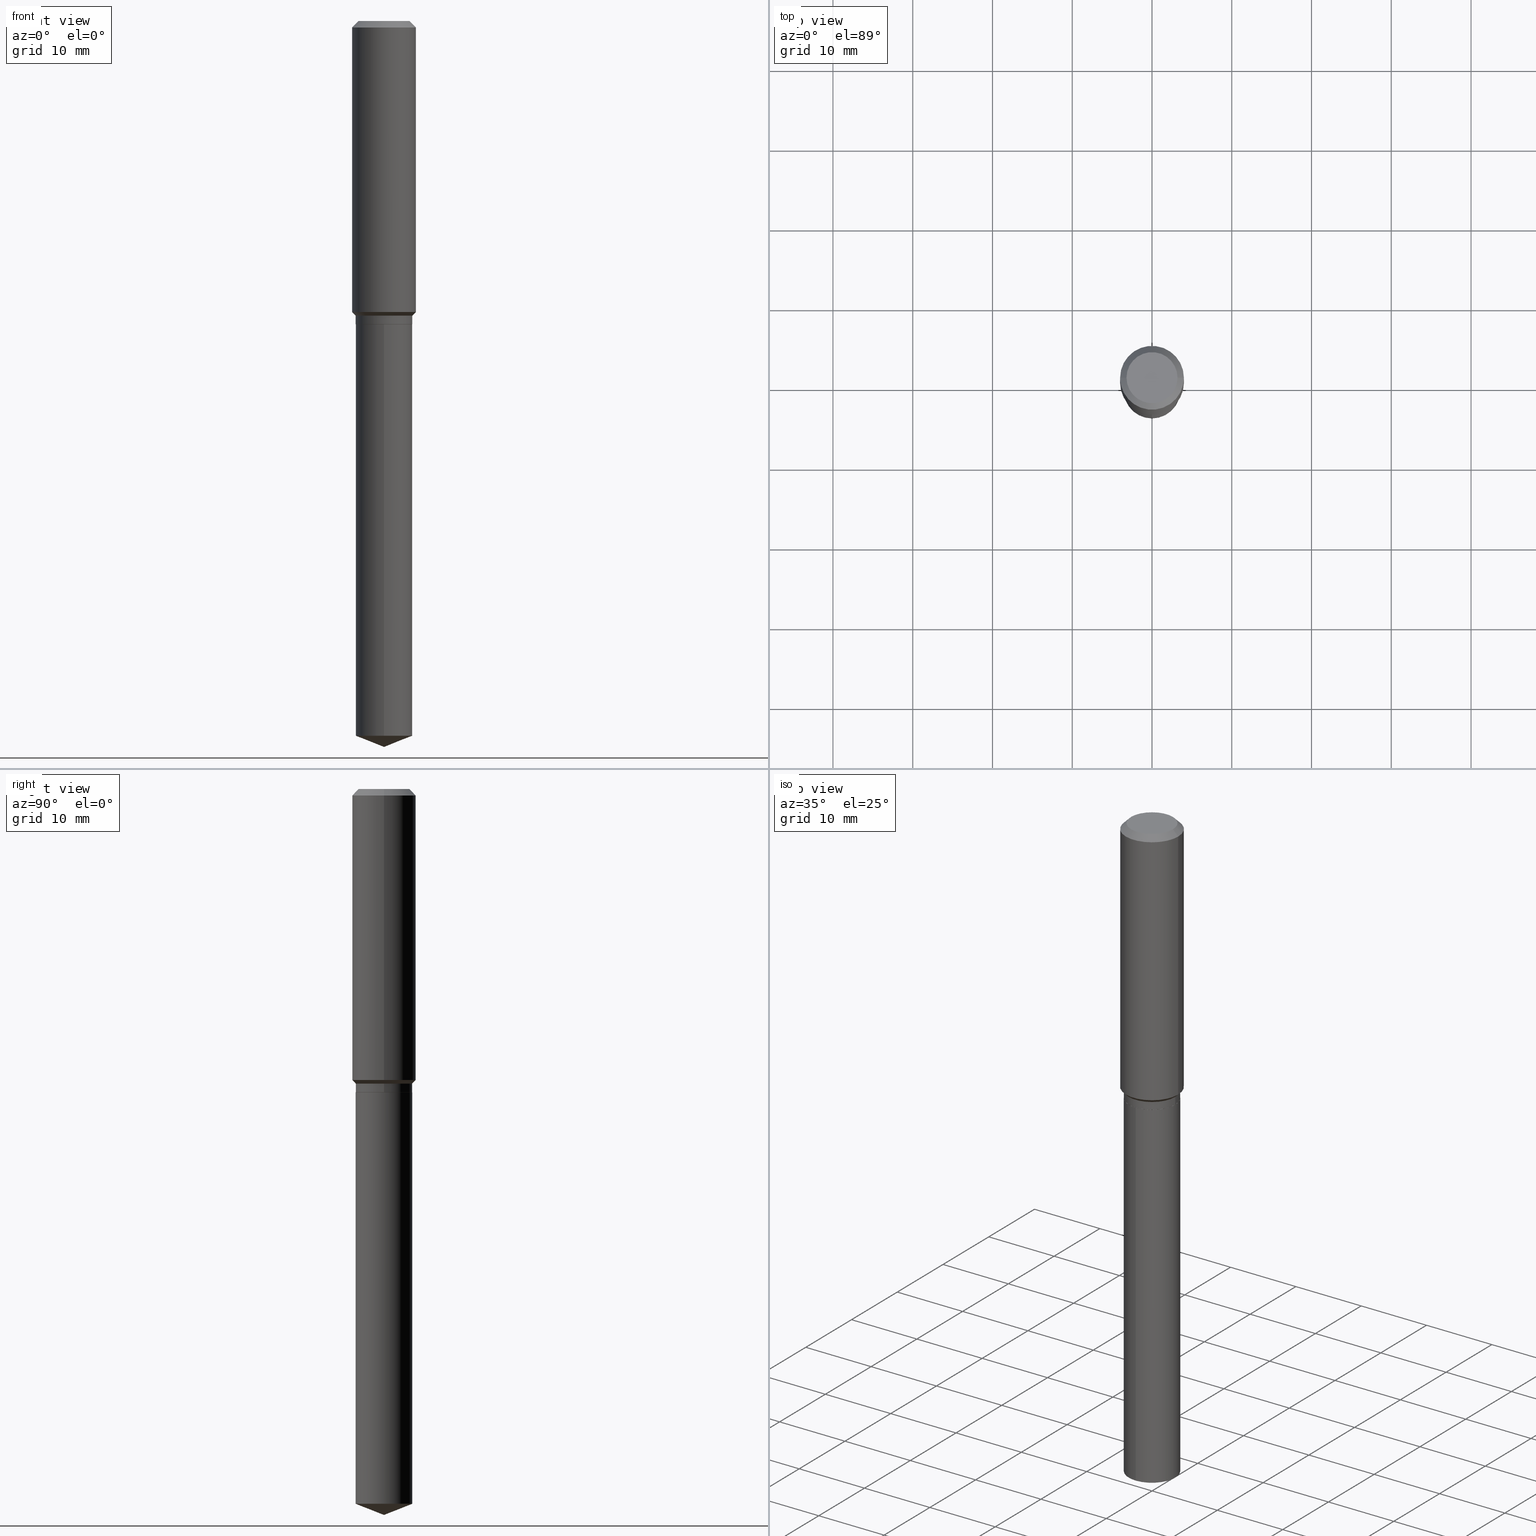
[diagram: canonical four-view strip — front | top / right | iso, engineering-drawing reading convention]
A machine part, canonical four-view strip (front | top / right | iso — engineering-drawing reading convention). The complete STEP part file that produces these views, byte-faithful:
ISO-10303-21;
HEADER;
FILE_DESCRIPTION (( 'STEP AP203' ),
    '1' );
FILE_NAME ('66544.STEP',
    '2024-04-25T00:38:59',
    ( '' ),
    ( '' ),
    'SwSTEP 2.0',
    'SolidWorks 2023',
    '' );
FILE_SCHEMA (( 'CONFIG_CONTROL_DESIGN' ));
ENDSEC;

DATA;
#1 = CARTESIAN_POINT ( 'NONE',  ( -0.1397500000000000131, -4.156951501568900332E-15, -1.454100000000000170 ) ) ;
#2 = PRODUCT_DEFINITION_FORMATION_WITH_SPECIFIED_SOURCE ( 'ANY', '', #199, .NOT_KNOWN. ) ;
#3 = PLANE ( 'NONE',  #386 ) ;
#4 = ORIENTED_EDGE ( 'NONE', *, *, #150, .T. ) ;
#5 = ADVANCED_FACE ( 'NONE', ( #291 ), #77, .T. ) ;
#6 = ORIENTED_EDGE ( 'NONE', *, *, #219, .T. ) ;
#7 = ORIENTED_EDGE ( 'NONE', *, *, #377, .T. ) ;
#8 = CIRCLE ( 'NONE', #126, 0.1397500000000000131 ) ;
#9 = AXIS2_PLACEMENT_3D ( 'NONE', #470, #57, #264 ) ;
#10 = CARTESIAN_POINT ( 'NONE',  ( 3.658176787172346501E-29, -5.222906934775461847E-15, -1.495900000000000230 ) ) ;
#11 = CONICAL_SURFACE ( 'NONE', #83, 0.1575000000000000011, 0.7853981633974449483 ) ;
#12 = VERTEX_POINT ( 'NONE', #147 ) ;
#13 = DIRECTION ( 'NONE',  ( 2.445468806185136597E-29, -3.491481338843145583E-15, -1.000000000000000000 ) ) ;
#14 = ADVANCED_BREP_SHAPE_REPRESENTATION ( '66544', ( #240, #408, #337 ), #269 ) ;
#15 = EDGE_CURVE ( 'NONE', #172, #472, #110, .T. ) ;
#16 = ORIENTED_EDGE ( 'NONE', *, *, #116, .F. ) ;
#17 = CARTESIAN_POINT ( 'NONE',  ( 0.000000000000000000, 0.000000000000000000, 0.000000000000000000 ) ) ;
#18 = VERTEX_POINT ( 'NONE', #379 ) ;
#19 = LOCAL_TIME ( 20, 38, 59.00000000000000000, #156 ) ;
#20 = FACE_OUTER_BOUND ( 'NONE', #98, .T. ) ;
#21 = CONICAL_SURFACE ( 'NONE', #39, 0.1392500000000000127, 0.7853981633972606513 ) ;
#22 = APPROVAL_STATUS ( 'not_yet_approved' ) ;
#23 = ORIENTED_EDGE ( 'NONE', *, *, #237, .T. ) ;
#24 = EDGE_CURVE ( 'NONE', #92, #321, #149, .T. ) ;
#25 = DIRECTION ( 'NONE',  ( -2.445468806185136877E-29, 3.491481338843145188E-15, 1.000000000000000000 ) ) ;
#26 = APPROVAL_STATUS ( 'not_yet_approved' ) ;
#27 = CARTESIAN_POINT ( 'NONE',  ( 3.659399521575438742E-29, -5.224652675444883351E-15, -1.496400000000000174 ) ) ;
#28 = CARTESIAN_POINT ( 'NONE',  ( 8.762090515050494278E-29, -1.251001393177779982E-14, -3.583000000000000185 ) ) ;
#29 = DIRECTION ( 'NONE',  ( -2.445425864037539637E-29, 3.491542834442619495E-15, 1.000000000000000000 ) ) ;
#30 = CC_DESIGN_SECURITY_CLASSIFICATION ( #392, ( #2 ) ) ;
#31 = FACE_OUTER_BOUND ( 'NONE', #287, .T. ) ;
#32 = AXIS2_PLACEMENT_3D ( 'NONE', #341, #409, #480 ) ;
#33 = DIRECTION ( 'NONE',  ( -2.445468806185136877E-29, 3.491481338843145188E-15, 1.000000000000000000 ) ) ;
#34 = CONICAL_SURFACE ( 'NONE', #82, 0.1575000000000000011, 0.7853981633974449483 ) ;
#35 = LENGTH_MEASURE_WITH_UNIT ( LENGTH_MEASURE( 0.02539999999999999897 ), #104 );
#36 = FACE_OUTER_BOUND ( 'NONE', #168, .T. ) ;
#37 = DIRECTION ( 'NONE',  ( 2.438088387897960049E-29, -3.491481338843145188E-15, -1.000000000000000000 ) ) ;
#38 = DATE_TIME_ROLE ( 'classification_date' ) ;
#39 = AXIS2_PLACEMENT_3D ( 'NONE', #238, #195, #390 ) ;
#40 = AXIS2_PLACEMENT_3D ( 'NONE', #17, #292, #324 ) ;
#41 = CALENDAR_DATE ( 2024, 24, 4 ) ;
#42 = VERTEX_POINT ( 'NONE', #165 ) ;
#43 = DIRECTION ( 'NONE',  ( 1.000000000000000000, -6.982962677686267499E-15, 0.000000000000000000 ) ) ;
#44 = ORIENTED_EDGE ( 'NONE', *, *, #75, .F. ) ;
#45 = DIRECTION ( 'NONE',  ( 0.7071067811865484609, -2.468850131082267316E-15, 0.7071067811865464625 ) ) ;
#46 = ADVANCED_FACE ( 'NONE', ( #81 ), #21, .T. ) ;
#47 = ORIENTED_EDGE ( 'NONE', *, *, #75, .T. ) ;
#48 = ORIENTED_EDGE ( 'NONE', *, *, #377, .F. ) ;
#49 = PRODUCT_DEFINITION ( 'UNKNOWN', '', #2, #152 ) ;
#50 = CARTESIAN_POINT ( 'NONE',  ( 0.1392500000000000127, -6.197030228312697126E-15, -1.496400000000000396 ) ) ;
#51 = ORIENTED_EDGE ( 'NONE', *, *, #55, .T. ) ;
#52 = AXIS2_PLACEMENT_3D ( 'NONE', #302, #223, #80 ) ;
#53 = LOCAL_TIME ( 20, 38, 59.00000000000000000, #265 ) ;
#54 = AXIS2_PLACEMENT_3D ( 'NONE', #372, #254, #488 ) ;
#55 = EDGE_CURVE ( 'NONE', #439, #472, #207, .T. ) ;
#56 = DIRECTION ( 'NONE',  ( -0.7071067811865484609, 7.493145998870357316E-15, 0.7071067811865464625 ) ) ;
#57 = DIRECTION ( 'NONE',  ( -2.445468806185136597E-29, 3.491481338843145583E-15, 1.000000000000000000 ) ) ;
#58 = DIRECTION ( 'NONE',  ( 1.000000000000000000, -6.982962677686265922E-15, 0.000000000000000000 ) ) ;
#59 = CC_DESIGN_PERSON_AND_ORGANIZATION_ASSIGNMENT ( #336, #435, ( #199 ) ) ;
#60 = CALENDAR_DATE ( 2024, 24, 4 ) ;
#61 = ORIENTED_EDGE ( 'NONE', *, *, #138, .T. ) ;
#62 = PLANE ( 'NONE',  #215 ) ;
#63 = EDGE_CURVE ( 'NONE', #12, #239, #90, .T. ) ;
#64 = ORIENTED_EDGE ( 'NONE', *, *, #342, .F. ) ;
#65 = DIRECTION ( 'NONE',  ( 1.000000000000000000, -6.982962677686265922E-15, 4.876281427513067258E-29 ) ) ;
#66 = VECTOR ( 'NONE', #225, 39.37007874015748143 ) ;
#67 = VECTOR ( 'NONE', #476, 39.37007874015748143 ) ;
#68 = EDGE_LOOP ( 'NONE', ( #6, #404, #325, #234 ) ) ;
#69 = PRODUCT_RELATED_PRODUCT_CATEGORY ( 'detail', '', ( #199 ) ) ;
#70 = CARTESIAN_POINT ( 'NONE',  ( 8.627406908066692635E-29, -1.231790005082116085E-14, -3.527951011032812723 ) ) ;
#71 = CARTESIAN_POINT ( 'NONE',  ( -9.439721640706201686E-47, 1.347742071746726764E-32, 3.860086710912459732E-18 ) ) ;
#72 = CARTESIAN_POINT ( 'NONE',  ( 0.1397500000000000131, -6.198775968982117841E-15, -1.495900000000000230 ) ) ;
#73 = CARTESIAN_POINT ( 'NONE',  ( 0.1397500000000000131, -9.758690342066557965E-16, 6.814457044174820579E-30 ) ) ;
#74 = CC_DESIGN_APPROVAL ( #475, ( #2 ) ) ;
#75 = EDGE_CURVE ( 'NONE', #472, #442, #315, .T. ) ;
#76 = CARTESIAN_POINT ( 'NONE',  ( 9.929834732247765877E-16, 0.1397499999999947951, -1.496400000000000841 ) ) ;
#77 = CONICAL_SURFACE ( 'NONE', #9, 0.1397500000000000131, 0.7853981633974497223 ) ;
#78 =( NAMED_UNIT ( * ) PLANE_ANGLE_UNIT ( ) SI_UNIT ( $, .RADIAN. ) );
#79 = PERSON_AND_ORGANIZATION ( #284, #304 ) ;
#80 = DIRECTION ( 'NONE',  ( 1.000000000000000000, -6.982962677686267499E-15, 0.000000000000000000 ) ) ;
#81 = FACE_OUTER_BOUND ( 'NONE', #127, .T. ) ;
#82 = AXIS2_PLACEMENT_3D ( 'NONE', #359, #13, #471 ) ;
#83 = AXIS2_PLACEMENT_3D ( 'NONE', #490, #145, #451 ) ;
#84 = CC_DESIGN_PERSON_AND_ORGANIZATION_ASSIGNMENT ( #267, #305, ( #2 ) ) ;
#85 = PERSON_AND_ORGANIZATION ( #284, #304 ) ;
#86 = CARTESIAN_POINT ( 'NONE',  ( 8.761960870846505279E-29, -1.251019797580790401E-14, -3.583000000000000185 ) ) ;
#87 = ORIENTED_EDGE ( 'NONE', *, *, #417, .T. ) ;
#88 = ORIENTED_EDGE ( 'NONE', *, *, #479, .T. ) ;
#89 = VERTEX_POINT ( 'NONE', #272 ) ;
#90 = CIRCLE ( 'NONE', #328, 0.1397500000000000131 ) ;
#91 = APPROVAL_PERSON_ORGANIZATION ( #146, #464, #481 ) ;
#92 = VERTEX_POINT ( 'NONE', #86 ) ;
#93 = EDGE_CURVE ( 'NONE', #89, #163, #462, .T. ) ;
#94 = DIRECTION ( 'NONE',  ( 1.000000000000000000, -6.982962677686267499E-15, 0.000000000000000000 ) ) ;
#95 = ORIENTED_EDGE ( 'NONE', *, *, #273, .F. ) ;
#96 = CARTESIAN_POINT ( 'NONE',  ( -9.758690342065698106E-16, -0.1397500000000123643, -3.527951011032812279 ) ) ;
#97 = CC_DESIGN_APPROVAL ( #464, ( #49 ) ) ;
#98 = EDGE_LOOP ( 'NONE', ( #4, #211 ) ) ;
#99 = PLANE ( 'NONE',  #193 ) ;
#100 = ORIENTED_EDGE ( 'NONE', *, *, #24, .T. ) ;
#101 = CARTESIAN_POINT ( 'NONE',  ( -9.758690342066191144E-16, -0.1397500000000052311, -1.496399999999999730 ) ) ;
#102 = CARTESIAN_POINT ( 'NONE',  ( 3.555956191073807244E-29, -5.076963014811818627E-15, -1.454100000000000170 ) ) ;
#103 = VERTEX_POINT ( 'NONE', #198 ) ;
#104 =( LENGTH_UNIT ( ) NAMED_UNIT ( * ) SI_UNIT ( $, .METRE. ) );
#105 = CIRCLE ( 'NONE', #467, 0.1397500000000000131 ) ;
#106 = CARTESIAN_POINT ( 'NONE',  ( 3.659399521575439863E-29, -5.224652675444884140E-15, -1.496400000000000396 ) ) ;
#107 = CARTESIAN_POINT ( 'NONE',  ( 0.000000000000000000, 0.000000000000000000, 0.000000000000000000 ) ) ;
#108 = CARTESIAN_POINT ( 'NONE',  ( -9.758690342066191144E-16, -0.1397500000000052311, -1.496399999999999730 ) ) ;
#109 = PERSON_AND_ORGANIZATION ( #284, #304 ) ;
#110 = LINE ( 'NONE', #73, #351 ) ;
#111 = DIRECTION ( 'NONE',  ( -6.982962677686265133E-15, -1.000000000000000000, 3.909621457837943227E-15 ) ) ;
#112 = LINE ( 'NONE', #300, #117 ) ;
#113 = APPROVAL_DATE_TIME ( #310, #187 ) ;
#114 = CC_DESIGN_PERSON_AND_ORGANIZATION_ASSIGNMENT ( #346, #420, ( #2 ) ) ;
#115 = LINE ( 'NONE', #306, #452 ) ;
#116 = EDGE_CURVE ( 'NONE', #18, #12, #397, .T. ) ;
#117 = VECTOR ( 'NONE', #298, 39.37007874015748143 ) ;
#118 = CARTESIAN_POINT ( 'NONE',  ( 0.1397500000000000131, -6.052832049018473832E-15, -1.454100000000000170 ) ) ;
#119 = AXIS2_PLACEMENT_3D ( 'NONE', #128, #281, #94 ) ;
#120 = MECHANICAL_CONTEXT ( 'NONE', #123, 'mechanical' ) ;
#121 = ORIENTED_EDGE ( 'NONE', *, *, #440, .T. ) ;
#122 = EDGE_CURVE ( 'NONE', #179, #42, #427, .T. ) ;
#123 = APPLICATION_CONTEXT ( 'configuration controlled 3d designs of mechanical parts and assemblies' ) ;
#124 = EDGE_CURVE ( 'NONE', #92, #18, #139, .T. ) ;
#125 = AXIS2_PLACEMENT_3D ( 'NONE', #106, #414, #221 ) ;
#126 = AXIS2_PLACEMENT_3D ( 'NONE', #220, #381, #182 ) ;
#127 = EDGE_LOOP ( 'NONE', ( #64, #174, #468, #477 ) ) ;
#128 = CARTESIAN_POINT ( 'NONE',  ( 3.512549119764021199E-29, -5.014989221047352489E-15, -1.436350000000000016 ) ) ;
#129 = ORIENTED_EDGE ( 'NONE', *, *, #93, .F. ) ;
#130 = DIRECTION ( 'NONE',  ( 0.7071067811864147901, -2.468850131080866299E-15, 0.7071067811866802444 ) ) ;
#131 = ORIENTED_EDGE ( 'NONE', *, *, #219, .F. ) ;
#132 = AXIS2_PLACEMENT_3D ( 'NONE', #394, #425, #196 ) ;
#133 = CARTESIAN_POINT ( 'NONE',  ( 3.659399521575438742E-29, -5.224652675444883351E-15, -1.496400000000000174 ) ) ;
#134 = ORIENTED_EDGE ( 'NONE', *, *, #440, .F. ) ;
#135 = DIRECTION ( 'NONE',  ( -2.445468806185136597E-29, 3.491481338843145583E-15, 1.000000000000000000 ) ) ;
#136 = ORIENTED_EDGE ( 'NONE', *, *, #307, .T. ) ;
#137 = DIRECTION ( 'NONE',  ( -2.445425864037539637E-29, 3.491542834442619495E-15, 1.000000000000000000 ) ) ;
#138 = EDGE_CURVE ( 'NONE', #245, #466, #270, .T. ) ;
#139 = LINE ( 'NONE', #28, #344 ) ;
#140 = PERSON_AND_ORGANIZATION ( #284, #304 ) ;
#141 = AXIS2_PLACEMENT_3D ( 'NONE', #340, #444, #419 ) ;
#142 = CARTESIAN_POINT ( 'NONE',  ( 0.1575000000000001676, -6.114805842782939970E-15, -1.436350000000000016 ) ) ;
#143 = CLOSED_SHELL ( 'NONE', ( #415, #232, #200, #5, #289, #246, #227, #465, #410, #429, #329, #46 ) ) ;
#144 = CIRCLE ( 'NONE', #483, 0.1397500000000000131 ) ;
#145 = DIRECTION ( 'NONE',  ( 2.445468806185136597E-29, -3.491481338843145583E-15, -1.000000000000000000 ) ) ;
#146 = PERSON_AND_ORGANIZATION ( #284, #304 ) ;
#147 = CARTESIAN_POINT ( 'NONE',  ( 9.929834732248264831E-16, 0.1397499999999947951, -1.496400000000000841 ) ) ;
#148 = DIRECTION ( 'NONE',  ( -2.445468806185136597E-29, 3.491481338843145583E-15, 1.000000000000000000 ) ) ;
#149 = LINE ( 'NONE', #190, #66 ) ;
#150 = EDGE_CURVE ( 'NONE', #239, #12, #393, .T. ) ;
#151 = FACE_OUTER_BOUND ( 'NONE', #68, .T. ) ;
#152 = DESIGN_CONTEXT ( 'detailed design', #201, 'design' ) ;
#153 =( CONVERSION_BASED_UNIT ( 'INCH', #35 ) LENGTH_UNIT ( ) NAMED_UNIT ( #235 ) );
#154 = VECTOR ( 'NONE', #181, 39.37007874015748143 ) ;
#155 = AXIS2_PLACEMENT_3D ( 'NONE', #286, #210, #180 ) ;
#156 = COORDINATED_UNIVERSAL_TIME_OFFSET ( 5, 0, .BEHIND. ) ;
#157 = DIRECTION ( 'NONE',  ( 1.000000000000000000, -6.982962677686267499E-15, 4.876176775795936353E-29 ) ) ;
#158 = SHAPE_DEFINITION_REPRESENTATION ( #347, #14 ) ;
#159 = ORIENTED_EDGE ( 'NONE', *, *, #454, .T. ) ;
#160 = CARTESIAN_POINT ( 'NONE',  ( 0.000000000000000000, 0.000000000000000000, 0.000000000000000000 ) ) ;
#161 = APPROVAL_ROLE ( '' ) ;
#162 = CARTESIAN_POINT ( 'NONE',  ( 3.659399521575438742E-29, -5.224652675444883351E-15, -1.496400000000000174 ) ) ;
#163 = VERTEX_POINT ( 'NONE', #333 ) ;
#164 = ORIENTED_EDGE ( 'NONE', *, *, #479, .F. ) ;
#165 = CARTESIAN_POINT ( 'NONE',  ( 0.1260000000000000009, -1.027466422270894443E-15, 3.860086710919128072E-18 ) ) ;
#166 = ORIENTED_EDGE ( 'NONE', *, *, #122, .T. ) ;
#167 = EDGE_CURVE ( 'NONE', #442, #202, #236, .T. ) ;
#168 = EDGE_LOOP ( 'NONE', ( #364, #316, #203, #164 ) ) ;
#169 = LINE ( 'NONE', #101, #271 ) ;
#170 = ORIENTED_EDGE ( 'NONE', *, *, #395, .T. ) ;
#171 = LINE ( 'NONE', #283, #205 ) ;
#172 = VERTEX_POINT ( 'NONE', #72 ) ;
#173 = FACE_OUTER_BOUND ( 'NONE', #389, .T. ) ;
#174 = ORIENTED_EDGE ( 'NONE', *, *, #93, .T. ) ;
#175 = AXIS2_PLACEMENT_3D ( 'NONE', #258, #224, #260 ) ;
#176 = AXIS2_PLACEMENT_3D ( 'NONE', #233, #388, #43 ) ;
#177 = DIRECTION ( 'NONE',  ( 1.000000000000000000, -6.982962677686265922E-15, 4.876176775795935793E-29 ) ) ;
#178 = DATE_TIME_ROLE ( 'creation_date' ) ;
#179 = VERTEX_POINT ( 'NONE', #294 ) ;
#180 = DIRECTION ( 'NONE',  ( -6.982962677686265133E-15, -1.000000000000000000, 3.498627837349974246E-15 ) ) ;
#181 = DIRECTION ( 'NONE',  ( -2.445425864037539356E-29, 3.491542834442619101E-15, 1.000000000000000000 ) ) ;
#182 = DIRECTION ( 'NONE',  ( 1.000000000000000000, -6.982962677686265133E-15, 0.000000000000000000 ) ) ;
#183 = DIRECTION ( 'NONE',  ( 1.000000000000000000, -6.982962677686265133E-15, 0.000000000000000000 ) ) ;
#184 = AXIS2_PLACEMENT_3D ( 'NONE', #339, #148, #177 ) ;
#185 = DIRECTION ( 'NONE',  ( -1.000000000000000000, 6.982962677686265922E-15, -4.876176775795935793E-29 ) ) ;
#186 = AXIS2_PLACEMENT_3D ( 'NONE', #445, #448, #303 ) ;
#187 = APPROVAL ( #422, 'UNSPECIFIED' ) ;
#188 = CYLINDRICAL_SURFACE ( 'NONE', #184, 0.1397500000000000131 ) ;
#189 = CARTESIAN_POINT ( 'NONE',  ( -4.719860820353100843E-47, 6.738710358733633822E-33, 1.930043355456229866E-18 ) ) ;
#190 = CARTESIAN_POINT ( 'NONE',  ( 8.761960870846503037E-29, -1.251019797580790401E-14, -3.583000000000000185 ) ) ;
#191 = DATE_AND_TIME ( #449, #350 ) ;
#192 = CARTESIAN_POINT ( 'NONE',  ( -0.1575000000000000011, -1.443380632788297581E-15, -0.03150000000000019451 ) ) ;
#193 = AXIS2_PLACEMENT_3D ( 'NONE', #250, #405, #330 ) ;
#194 = APPROVAL_DATE_TIME ( #263, #475 ) ;
#195 = DIRECTION ( 'NONE',  ( -2.445468806185136597E-29, 3.491481338843145583E-15, 1.000000000000000000 ) ) ;
#196 = DIRECTION ( 'NONE',  ( 1.000000000000000000, -6.982962677686265133E-15, 0.000000000000000000 ) ) ;
#197 = EDGE_LOOP ( 'NONE', ( #256, #323, #61, #309 ) ) ;
#198 = CARTESIAN_POINT ( 'NONE',  ( -0.1397500000000000131, -4.156951501568900332E-15, -1.495900000000000230 ) ) ;
#199 = PRODUCT ( '66544', '66544', '', ( #120 ) ) ;
#200 = ADVANCED_FACE ( 'NONE', ( #36 ), #382, .T. ) ;
#201 = APPLICATION_CONTEXT ( 'configuration controlled 3d designs of mechanical parts and assemblies' ) ;
#202 = VERTEX_POINT ( 'NONE', #290 ) ;
#203 = ORIENTED_EDGE ( 'NONE', *, *, #138, .F. ) ;
#204 = CARTESIAN_POINT ( 'NONE',  ( -0.1392500000000000127, -4.235221915898944738E-15, -1.496400000000000396 ) ) ;
#205 = VECTOR ( 'NONE', #25, 39.37007874015748143 ) ;
#206 = ORIENTED_EDGE ( 'NONE', *, *, #460, .F. ) ;
#207 = CIRCLE ( 'NONE', #132, 0.1397500000000000131 ) ;
#208 = FACE_OUTER_BOUND ( 'NONE', #398, .T. ) ;
#209 = ORIENTED_EDGE ( 'NONE', *, *, #360, .F. ) ;
#210 = DIRECTION ( 'NONE',  ( -2.445425864037539637E-29, 3.491542834442619495E-15, 1.000000000000000000 ) ) ;
#211 = ORIENTED_EDGE ( 'NONE', *, *, #63, .T. ) ;
#212 = CARTESIAN_POINT ( 'NONE',  ( 1.609423661035880704E-29, -8.160334785117561319E-15, -1.496400000000000396 ) ) ;
#213 = ORIENTED_EDGE ( 'NONE', *, *, #417, .F. ) ;
#214 = AXIS2_PLACEMENT_3D ( 'NONE', #71, #418, #441 ) ;
#215 = AXIS2_PLACEMENT_3D ( 'NONE', #212, #407, #365 ) ;
#216 = DIRECTION ( 'NONE',  ( -2.445468806185136597E-29, 3.491481338843145583E-15, 1.000000000000000000 ) ) ;
#217 = DIRECTION ( 'NONE',  ( 6.611014441532074478E-15, 0.9304175679820283484, 0.3665012267242878097 ) ) ;
#218 = DATE_AND_TIME ( #446, #369 ) ;
#219 = EDGE_CURVE ( 'NONE', #163, #89, #278, .T. ) ;
#220 = CARTESIAN_POINT ( 'NONE',  ( 3.555956191073807244E-29, -5.076963014811818627E-15, -1.454100000000000170 ) ) ;
#221 = DIRECTION ( 'NONE',  ( 1.000000000000000000, -6.982962677686267499E-15, 0.000000000000000000 ) ) ;
#222 = FACE_OUTER_BOUND ( 'NONE', #197, .T. ) ;
#223 = DIRECTION ( 'NONE',  ( -2.445468806185136597E-29, 3.491481338843145583E-15, 1.000000000000000000 ) ) ;
#224 = DIRECTION ( 'NONE',  ( -2.445425864037539637E-29, 3.491542834442619495E-15, 1.000000000000000000 ) ) ;
#225 = DIRECTION ( 'NONE',  ( -6.497071151882127725E-15, -0.9304175679820255729, 0.3665012267242943600 ) ) ;
#226 =( NAMED_UNIT ( * ) SI_UNIT ( $, .STERADIAN. ) SOLID_ANGLE_UNIT ( ) );
#227 = ADVANCED_FACE ( 'NONE', ( #485 ), #319, .T. ) ;
#228 = VECTOR ( 'NONE', #56, 39.37007874015748854 ) ;
#229 = APPROVAL_PERSON_ORGANIZATION ( #85, #187, #161 ) ;
#230 = CLOSED_SHELL ( 'NONE', ( #293, #421, #277, #437, #318 ) ) ;
#231 = AXIS2_PLACEMENT_3D ( 'NONE', #27, #450, #413 ) ;
#232 = ADVANCED_FACE ( 'NONE', ( #222 ), #11, .T. ) ;
#233 = CARTESIAN_POINT ( 'NONE',  ( 3.659399521575439863E-29, -5.224652675444884140E-15, -1.496400000000000396 ) ) ;
#234 = ORIENTED_EDGE ( 'NONE', *, *, #268, .F. ) ;
#235 = DIMENSIONAL_EXPONENTS ( 1.000000000000000000, 0.000000000000000000, 0.000000000000000000, 0.000000000000000000, 0.000000000000000000, 0.000000000000000000, 0.000000000000000000 ) ;
#236 = CIRCLE ( 'NONE', #186, 0.1575000000000001676 ) ;
#237 = EDGE_CURVE ( 'NONE', #103, #439, #112, .T. ) ;
#238 = CARTESIAN_POINT ( 'NONE',  ( 3.659399521575439863E-29, -5.224652675444884140E-15, -1.496400000000000396 ) ) ;
#239 = VERTEX_POINT ( 'NONE', #108 ) ;
#240 = MANIFOLD_SOLID_BREP ( 'Body-Move/Copy2[1]', #230 ) ;
#241 = DIRECTION ( 'NONE',  ( 1.000000000000000000, -6.982962677686265133E-15, 0.000000000000000000 ) ) ;
#242 = ORIENTED_EDGE ( 'NONE', *, *, #150, .F. ) ;
#243 = LINE ( 'NONE', #400, #228 ) ;
#244 = AXIS2_PLACEMENT_3D ( 'NONE', #247, #403, #58 ) ;
#245 = VERTEX_POINT ( 'NONE', #378 ) ;
#246 = ADVANCED_FACE ( 'NONE', ( #31 ), #188, .T. ) ;
#247 = CARTESIAN_POINT ( 'NONE',  ( 7.703226739483228723E-31, -1.099816621735597661E-16, -0.03150000000000019451 ) ) ;
#248 = COORDINATED_UNIVERSAL_TIME_OFFSET ( 5, 0, .BEHIND. ) ;
#249 = ORIENTED_EDGE ( 'NONE', *, *, #395, .F. ) ;
#250 = CARTESIAN_POINT ( 'NONE',  ( 3.659399521575438742E-29, -5.224652675444883351E-15, -1.496400000000000174 ) ) ;
#251 = CC_DESIGN_PERSON_AND_ORGANIZATION_ASSIGNMENT ( #109, #261, ( #49 ) ) ;
#252 = ORIENTED_EDGE ( 'NONE', *, *, #124, .T. ) ;
#253 = DIRECTION ( 'NONE',  ( -6.982962677686265133E-15, -1.000000000000000000, 3.909621457837943227E-15 ) ) ;
#254 = DIRECTION ( 'NONE',  ( -2.445468806185136597E-29, 3.491481338843145583E-15, 1.000000000000000000 ) ) ;
#255 = EDGE_CURVE ( 'NONE', #321, #239, #169, .T. ) ;
#256 = ORIENTED_EDGE ( 'NONE', *, *, #348, .F. ) ;
#257 = APPROVAL_PERSON_ORGANIZATION ( #140, #475, #295 ) ;
#258 = CARTESIAN_POINT ( 'NONE',  ( 3.659399521575438742E-29, -5.224652675444883351E-15, -1.496400000000000174 ) ) ;
#259 = CARTESIAN_POINT ( 'NONE',  ( -8.751458369089940116E-28, 1.249522103628457051E-13, 35.78707874015748303 ) ) ;
#260 = DIRECTION ( 'NONE',  ( -6.982962677686265133E-15, -1.000000000000000000, 3.909621457837943227E-15 ) ) ;
#261 = PERSON_AND_ORGANIZATION_ROLE ( 'creator' ) ;
#262 = CARTESIAN_POINT ( 'NONE',  ( -0.1575000000000000011, 9.898349595620272334E-16, -0.03150000000000019451 ) ) ;
#263 = DATE_AND_TIME ( #41, #53 ) ;
#264 = DIRECTION ( 'NONE',  ( 1.000000000000000000, -6.982962677686265133E-15, 0.000000000000000000 ) ) ;
#265 = COORDINATED_UNIVERSAL_TIME_OFFSET ( 5, 0, .BEHIND. ) ;
#266 = FACE_OUTER_BOUND ( 'NONE', #461, .T. ) ;
#267 = PERSON_AND_ORGANIZATION ( #284, #304 ) ;
#268 = EDGE_CURVE ( 'NONE', #163, #172, #438, .T. ) ;
#269 =( GEOMETRIC_REPRESENTATION_CONTEXT ( 3 ) GLOBAL_UNCERTAINTY_ASSIGNED_CONTEXT ( ( #391 ) ) GLOBAL_UNIT_ASSIGNED_CONTEXT ( ( #153, #78, #226 ) ) REPRESENTATION_CONTEXT ( 'NONE', 'WORKASPACE' ) );
#270 = CIRCLE ( 'NONE', #54, 0.1575000000000000011 ) ;
#271 = VECTOR ( 'NONE', #478, 39.37007874015748143 ) ;
#272 = CARTESIAN_POINT ( 'NONE',  ( -0.1392500000000000127, -4.232572688724833537E-15, -1.496400000000000396 ) ) ;
#273 = EDGE_CURVE ( 'NONE', #466, #245, #357, .T. ) ;
#274 = ORIENTED_EDGE ( 'NONE', *, *, #116, .T. ) ;
#275 = EDGE_LOOP ( 'NONE', ( #436, #23, #213, #458 ) ) ;
#276 = DIRECTION ( 'NONE',  ( 1.000000000000000000, 0.000000000000000000, 0.000000000000000000 ) ) ;
#277 = ADVANCED_FACE ( 'NONE', ( #431 ), #412, .T. ) ;
#278 = CIRCLE ( 'NONE', #125, 0.1392500000000000127 ) ;
#279 = CONICAL_SURFACE ( 'NONE', #52, 0.1392500000000000127, 0.7853981633972606513 ) ;
#280 = EDGE_LOOP ( 'NONE', ( #16, #121, #432, #282 ) ) ;
#281 = DIRECTION ( 'NONE',  ( -2.445468806185136597E-29, 3.491481338843145583E-15, 1.000000000000000000 ) ) ;
#282 = ORIENTED_EDGE ( 'NONE', *, *, #63, .F. ) ;
#283 = CARTESIAN_POINT ( 'NONE',  ( -0.1575000000000000844, 1.119104808822158392E-15, -7.747322767151481189E-30 ) ) ;
#284 = PERSON ( 'UNSPECIFIED', 'UNSPECIFIED', 'UNSPECIFIED', ('UNSPECIFIED'), ('UNSPECIFIED'), ('UNSPECIFIED') ) ;
#285 = ORIENTED_EDGE ( 'NONE', *, *, #15, .T. ) ;
#286 = CARTESIAN_POINT ( 'NONE',  ( -8.751458369089940116E-28, 1.249522103628457051E-13, 35.78707874015748303 ) ) ;
#287 = EDGE_LOOP ( 'NONE', ( #349, #136, #285, #317 ) ) ;
#288 = LINE ( 'NONE', #204, #67 ) ;
#289 = ADVANCED_FACE ( 'NONE', ( #473 ), #362, .T. ) ;
#290 = CARTESIAN_POINT ( 'NONE',  ( -0.1575000000000001676, -3.895884412225194097E-15, -1.436350000000000016 ) ) ;
#291 = FACE_OUTER_BOUND ( 'NONE', #331, .T. ) ;
#292 = DIRECTION ( 'NONE',  ( -2.445468806185136597E-29, 3.491481338843145583E-15, 1.000000000000000000 ) ) ;
#293 = ADVANCED_FACE ( 'NONE', ( #173 ), #326, .T. ) ;
#294 = CARTESIAN_POINT ( 'NONE',  ( -0.1260000000000000009, 9.348441284752484904E-16, 3.860086710906114178E-18 ) ) ;
#295 = APPROVAL_ROLE ( '' ) ;
#296 = CIRCLE ( 'NONE', #401, 0.1397500000000000131 ) ;
#297 = DIRECTION ( 'NONE',  ( -0.7071067811865451302, 2.468850131082231817E-15, -0.7071067811865499042 ) ) ;
#298 = DIRECTION ( 'NONE',  ( -2.445468806185136877E-29, 3.491481338843145188E-15, 1.000000000000000000 ) ) ;
#299 = FACE_OUTER_BOUND ( 'NONE', #463, .T. ) ;
#300 = CARTESIAN_POINT ( 'NONE',  ( -0.1397500000000000131, 9.929834732247401028E-16, -6.874211788631230986E-30 ) ) ;
#301 = COORDINATED_UNIVERSAL_TIME_OFFSET ( 5, 0, .BEHIND. ) ;
#302 = CARTESIAN_POINT ( 'NONE',  ( 3.659399521575439863E-29, -5.224652675444884140E-15, -1.496400000000000396 ) ) ;
#303 = DIRECTION ( 'NONE',  ( 1.000000000000000000, -6.982962677686267499E-15, 0.000000000000000000 ) ) ;
#304 = ORGANIZATION ( 'UNSPECIFIED', 'UNSPECIFIED', '' ) ;
#305 = PERSON_AND_ORGANIZATION_ROLE ( 'creator' ) ;
#306 = CARTESIAN_POINT ( 'NONE',  ( 0.1575000000000000844, -1.099816621735587677E-15, 7.679978421878603638E-30 ) ) ;
#307 = EDGE_CURVE ( 'NONE', #103, #172, #296, .T. ) ;
#308 = DIRECTION ( 'NONE',  ( -2.445425864037539637E-29, 3.491542834442619495E-15, 1.000000000000000000 ) ) ;
#309 = ORIENTED_EDGE ( 'NONE', *, *, #454, .F. ) ;
#310 = DATE_AND_TIME ( #455, #19 ) ;
#311 = DIRECTION ( 'NONE',  ( -6.982962677686265133E-15, -1.000000000000000000, 3.909621457837943227E-15 ) ) ;
#312 = AXIS2_PLACEMENT_3D ( 'NONE', #355, #135, #65 ) ;
#313 = EDGE_LOOP ( 'NONE', ( #249, #51, #47, #48 ) ) ;
#314 = DIRECTION ( 'NONE',  ( 0.000000000000000000, 0.000000000000000000, 1.000000000000000000 ) ) ;
#315 = LINE ( 'NONE', #118, #366 ) ;
#316 = ORIENTED_EDGE ( 'NONE', *, *, #360, .T. ) ;
#317 = ORIENTED_EDGE ( 'NONE', *, *, #55, .F. ) ;
#318 = ADVANCED_FACE ( 'NONE', ( #20 ), #99, .F. ) ;
#319 = CONICAL_SURFACE ( 'NONE', #385, 0.1397500000000000131, 0.7853981633974497223 ) ;
#320 = VECTOR ( 'NONE', #130, 39.37007874015748143 ) ;
#321 = VERTEX_POINT ( 'NONE', #96 ) ;
#322 = LINE ( 'NONE', #433, #399 ) ;
#323 = ORIENTED_EDGE ( 'NONE', *, *, #370, .T. ) ;
#324 = DIRECTION ( 'NONE',  ( 1.000000000000000000, -6.982962677686265922E-15, 4.876176775795935793E-29 ) ) ;
#325 = ORIENTED_EDGE ( 'NONE', *, *, #354, .F. ) ;
#326 = CYLINDRICAL_SURFACE ( 'NONE', #434, 0.1397500000000000131 ) ;
#327 = ORIENTED_EDGE ( 'NONE', *, *, #370, .F. ) ;
#328 = AXIS2_PLACEMENT_3D ( 'NONE', #162, #308, #311 ) ;
#329 = ADVANCED_FACE ( 'NONE', ( #396 ), #62, .F. ) ;
#330 = DIRECTION ( 'NONE',  ( 6.982962677686265922E-15, 1.000000000000000000, -3.491542834442619101E-15 ) ) ;
#331 = EDGE_LOOP ( 'NONE', ( #87, #170, #358, #44 ) ) ;
#332 = CARTESIAN_POINT ( 'NONE',  ( 3.658176787172346501E-29, -5.222906934775461847E-15, -1.495900000000000230 ) ) ;
#333 = CARTESIAN_POINT ( 'NONE',  ( 0.1392500000000000127, -6.197030228312697126E-15, -1.496400000000000396 ) ) ;
#334 = FACE_OUTER_BOUND ( 'NONE', #280, .T. ) ;
#335 = VECTOR ( 'NONE', #297, 39.37007874015748143 ) ;
#336 = PERSON_AND_ORGANIZATION ( #284, #304 ) ;
#337 = AXIS2_PLACEMENT_3D ( 'NONE', #160, #314, #276 ) ;
#338 = CYLINDRICAL_SURFACE ( 'NONE', #486, 0.1575000000000000844 ) ;
#339 = CARTESIAN_POINT ( 'NONE',  ( 0.000000000000000000, 0.000000000000000000, 0.000000000000000000 ) ) ;
#340 = CARTESIAN_POINT ( 'NONE',  ( 8.627406908066692635E-29, -1.231790005082116085E-14, -3.527951011032812723 ) ) ;
#341 = CARTESIAN_POINT ( 'NONE',  ( 0.000000000000000000, 0.000000000000000000, 0.000000000000000000 ) ) ;
#342 = EDGE_CURVE ( 'NONE', #89, #103, #288, .T. ) ;
#343 = FACE_OUTER_BOUND ( 'NONE', #426, .T. ) ;
#344 = VECTOR ( 'NONE', #217, 39.37007874015748143 ) ;
#345 = CONICAL_SURFACE ( 'NONE', #424, 99.94676754584082801, 1.195550537616122400 ) ;
#346 = PERSON_AND_ORGANIZATION ( #284, #304 ) ;
#347 = PRODUCT_DEFINITION_SHAPE ( 'NONE', 'NONE',  #49 ) ;
#348 = EDGE_CURVE ( 'NONE', #42, #179, #423, .T. ) ;
#349 = ORIENTED_EDGE ( 'NONE', *, *, #237, .F. ) ;
#350 = LOCAL_TIME ( 20, 38, 59.00000000000000000, #301 ) ;
#351 = VECTOR ( 'NONE', #33, 39.37007874015748143 ) ;
#352 = CC_DESIGN_PERSON_AND_ORGANIZATION_ASSIGNMENT ( #79, #457, ( #392 ) ) ;
#353 = ORIENTED_EDGE ( 'NONE', *, *, #124, .F. ) ;
#354 = EDGE_CURVE ( 'NONE', #172, #103, #105, .T. ) ;
#355 = CARTESIAN_POINT ( 'NONE',  ( -9.439721640706201686E-47, 1.347742071746726764E-32, 3.860086710912459732E-18 ) ) ;
#356 = CC_DESIGN_APPROVAL ( #187, ( #392 ) ) ;
#357 = CIRCLE ( 'NONE', #244, 0.1575000000000000011 ) ;
#358 = ORIENTED_EDGE ( 'NONE', *, *, #167, .F. ) ;
#359 = CARTESIAN_POINT ( 'NONE',  ( 7.703226739483228723E-31, -1.099816621735597661E-16, -0.03150000000000019451 ) ) ;
#360 = EDGE_CURVE ( 'NONE', #202, #466, #171, .T. ) ;
#361 = EDGE_LOOP ( 'NONE', ( #353, #100, #134 ) ) ;
#362 = CYLINDRICAL_SURFACE ( 'NONE', #40, 0.1397500000000000131 ) ;
#363 = DATE_AND_TIME ( #60, #380 ) ;
#364 = ORIENTED_EDGE ( 'NONE', *, *, #167, .T. ) ;
#365 = DIRECTION ( 'NONE',  ( 1.000000000000000000, -6.982962677686265922E-15, 4.876176775795935793E-29 ) ) ;
#366 = VECTOR ( 'NONE', #45, 39.37007874015748854 ) ;
#367 = COORDINATED_UNIVERSAL_TIME_OFFSET ( 5, 0, .BEHIND. ) ;
#368 = EDGE_LOOP ( 'NONE', ( #131, #129 ) ) ;
#369 = LOCAL_TIME ( 20, 38, 59.00000000000000000, #367 ) ;
#370 = EDGE_CURVE ( 'NONE', #42, #245, #322, .T. ) ;
#371 = DIRECTION ( 'NONE',  ( 1.000000000000000000, -6.982962677686265133E-15, 0.000000000000000000 ) ) ;
#372 = CARTESIAN_POINT ( 'NONE',  ( 7.703226739483228723E-31, -1.099816621735597661E-16, -0.03150000000000019451 ) ) ;
#373 = APPROVAL_DATE_TIME ( #218, #464 ) ;
#374 = CYLINDRICAL_SURFACE ( 'NONE', #231, 0.1397500000000000131 ) ;
#375 = DIRECTION ( 'NONE',  ( -2.445468806185136597E-29, 3.491481338843145583E-15, 1.000000000000000000 ) ) ;
#376 = CARTESIAN_POINT ( 'NONE',  ( 0.1397500000000000131, -6.052832049018473832E-15, -1.454100000000000170 ) ) ;
#377 = EDGE_CURVE ( 'NONE', #202, #442, #428, .T. ) ;
#378 = CARTESIAN_POINT ( 'NONE',  ( 0.1575000000000000011, -1.209798283909146741E-15, -0.03150000000000019451 ) ) ;
#379 = CARTESIAN_POINT ( 'NONE',  ( 9.929834732248264831E-16, 0.1397499999999877451, -3.527951011032813611 ) ) ;
#380 = LOCAL_TIME ( 20, 38, 59.00000000000000000, #248 ) ;
#381 = DIRECTION ( 'NONE',  ( -2.445468806185136597E-29, 3.491481338843145583E-15, 1.000000000000000000 ) ) ;
#382 = CYLINDRICAL_SURFACE ( 'NONE', #32, 0.1575000000000000844 ) ;
#383 = DIRECTION ( 'NONE',  ( -6.982962677686265133E-15, -1.000000000000000000, 3.498627837349974246E-15 ) ) ;
#384 = SECURITY_CLASSIFICATION_LEVEL ( 'unclassified' ) ;
#385 = AXIS2_PLACEMENT_3D ( 'NONE', #102, #375, #183 ) ;
#386 = AXIS2_PLACEMENT_3D ( 'NONE', #189, #37, #185 ) ;
#387 = ORIENTED_EDGE ( 'NONE', *, *, #255, .F. ) ;
#388 = DIRECTION ( 'NONE',  ( -2.445468806185136597E-29, 3.491481338843145583E-15, 1.000000000000000000 ) ) ;
#389 = EDGE_LOOP ( 'NONE', ( #430, #274, #242, #387 ) ) ;
#390 = DIRECTION ( 'NONE',  ( 1.000000000000000000, -6.982962677686267499E-15, 0.000000000000000000 ) ) ;
#391 = UNCERTAINTY_MEASURE_WITH_UNIT (LENGTH_MEASURE( 1.000000000000000082E-05 ), #153, 'distance_accuracy_value', 'NONE');
#392 = SECURITY_CLASSIFICATION ( '', '', #384 ) ;
#393 = CIRCLE ( 'NONE', #175, 0.1397500000000000131 ) ;
#394 = CARTESIAN_POINT ( 'NONE',  ( 3.555956191073807244E-29, -5.076963014811818627E-15, -1.454100000000000170 ) ) ;
#395 = EDGE_CURVE ( 'NONE', #439, #202, #243, .T. ) ;
#396 = FACE_OUTER_BOUND ( 'NONE', #368, .T. ) ;
#397 = LINE ( 'NONE', #76, #154 ) ;
#398 = EDGE_LOOP ( 'NONE', ( #327, #402, #159, #411 ) ) ;
#399 = VECTOR ( 'NONE', #469, 39.37007874015748143 ) ;
#400 = CARTESIAN_POINT ( 'NONE',  ( -0.1397500000000000131, -4.083979541587078327E-15, -1.454100000000000170 ) ) ;
#401 = AXIS2_PLACEMENT_3D ( 'NONE', #332, #443, #241 ) ;
#402 = ORIENTED_EDGE ( 'NONE', *, *, #122, .F. ) ;
#403 = DIRECTION ( 'NONE',  ( -2.445468806185136597E-29, 3.491481338843145583E-15, 1.000000000000000000 ) ) ;
#404 = ORIENTED_EDGE ( 'NONE', *, *, #342, .T. ) ;
#405 = DIRECTION ( 'NONE',  ( 2.445425864037539637E-29, -3.491542834442619101E-15, -1.000000000000000000 ) ) ;
#406 = ORIENTED_EDGE ( 'NONE', *, *, #348, .T. ) ;
#407 = DIRECTION ( 'NONE',  ( -2.438088387897960049E-29, 3.491481338843145188E-15, 1.000000000000000000 ) ) ;
#408 = MANIFOLD_SOLID_BREP ( 'Body-Move/Copy2[2]', #143 ) ;
#409 = DIRECTION ( 'NONE',  ( -2.445468806185136597E-29, 3.491481338843145583E-15, 1.000000000000000000 ) ) ;
#410 = ADVANCED_FACE ( 'NONE', ( #208 ), #34, .T. ) ;
#411 = ORIENTED_EDGE ( 'NONE', *, *, #273, .T. ) ;
#412 = CONICAL_SURFACE ( 'NONE', #155, 99.94676754584082801, 1.195550537616122400 ) ;
#413 = DIRECTION ( 'NONE',  ( -6.982962677686265133E-15, -1.000000000000000000, 3.909621457837943227E-15 ) ) ;
#414 = DIRECTION ( 'NONE',  ( -2.445468806185136597E-29, 3.491481338843145583E-15, 1.000000000000000000 ) ) ;
#415 = ADVANCED_FACE ( 'NONE', ( #151 ), #279, .T. ) ;
#416 = APPLICATION_PROTOCOL_DEFINITION ( 'international standard', 'config_control_design', 1994, #201 ) ;
#417 = EDGE_CURVE ( 'NONE', #472, #439, #8, .T. ) ;
#418 = DIRECTION ( 'NONE',  ( -2.445468806185136597E-29, 3.491481338843145583E-15, 1.000000000000000000 ) ) ;
#419 = DIRECTION ( 'NONE',  ( -6.982962677686265133E-15, -1.000000000000000000, 3.909621457837943227E-15 ) ) ;
#420 = PERSON_AND_ORGANIZATION_ROLE ( 'design_supplier' ) ;
#421 = ADVANCED_FACE ( 'NONE', ( #266 ), #345, .T. ) ;
#422 = APPROVAL_STATUS ( 'not_yet_approved' ) ;
#423 = CIRCLE ( 'NONE', #312, 0.1260000000000000009 ) ;
#424 = AXIS2_PLACEMENT_3D ( 'NONE', #259, #29, #383 ) ;
#425 = DIRECTION ( 'NONE',  ( -2.445468806185136597E-29, 3.491481338843145583E-15, 1.000000000000000000 ) ) ;
#426 = EDGE_LOOP ( 'NONE', ( #209, #7, #88, #95 ) ) ;
#427 = CIRCLE ( 'NONE', #214, 0.1260000000000000009 ) ;
#428 = CIRCLE ( 'NONE', #119, 0.1575000000000001676 ) ;
#429 = ADVANCED_FACE ( 'NONE', ( #299 ), #3, .F. ) ;
#430 = ORIENTED_EDGE ( 'NONE', *, *, #460, .T. ) ;
#431 = FACE_OUTER_BOUND ( 'NONE', #361, .T. ) ;
#432 = ORIENTED_EDGE ( 'NONE', *, *, #255, .T. ) ;
#433 = CARTESIAN_POINT ( 'NONE',  ( 0.1575000000000000011, -1.190510096822576026E-15, -0.03150000000000019451 ) ) ;
#434 = AXIS2_PLACEMENT_3D ( 'NONE', #133, #137, #253 ) ;
#435 = PERSON_AND_ORGANIZATION_ROLE ( 'design_owner' ) ;
#436 = ORIENTED_EDGE ( 'NONE', *, *, #354, .T. ) ;
#437 = ADVANCED_FACE ( 'NONE', ( #334 ), #374, .T. ) ;
#438 = LINE ( 'NONE', #50, #320 ) ;
#439 = VERTEX_POINT ( 'NONE', #1 ) ;
#440 = EDGE_CURVE ( 'NONE', #18, #321, #144, .T. ) ;
#441 = DIRECTION ( 'NONE',  ( 1.000000000000000000, -6.982962677686265922E-15, 4.876281427513067258E-29 ) ) ;
#442 = VERTEX_POINT ( 'NONE', #142 ) ;
#443 = DIRECTION ( 'NONE',  ( -2.445468806185136597E-29, 3.491481338843145583E-15, 1.000000000000000000 ) ) ;
#444 = DIRECTION ( 'NONE',  ( -2.445425864037539637E-29, 3.491542834442619495E-15, 1.000000000000000000 ) ) ;
#445 = CARTESIAN_POINT ( 'NONE',  ( 3.512549119764021199E-29, -5.014989221047352489E-15, -1.436350000000000016 ) ) ;
#446 = CALENDAR_DATE ( 2024, 24, 4 ) ;
#447 = APPLICATION_PROTOCOL_DEFINITION ( 'international standard', 'config_control_design', 1994, #123 ) ;
#448 = DIRECTION ( 'NONE',  ( -2.445468806185136597E-29, 3.491481338843145583E-15, 1.000000000000000000 ) ) ;
#449 = CALENDAR_DATE ( 2024, 24, 4 ) ;
#450 = DIRECTION ( 'NONE',  ( -2.445425864037539637E-29, 3.491542834442619495E-15, 1.000000000000000000 ) ) ;
#451 = DIRECTION ( 'NONE',  ( -1.000000000000000000, 6.982962677686265922E-15, 0.000000000000000000 ) ) ;
#452 = VECTOR ( 'NONE', #489, 39.37007874015748143 ) ;
#453 = DIRECTION ( 'NONE',  ( -2.445425864037539637E-29, 3.491542834442619495E-15, 1.000000000000000000 ) ) ;
#454 = EDGE_CURVE ( 'NONE', #179, #466, #482, .T. ) ;
#455 = CALENDAR_DATE ( 2024, 24, 4 ) ;
#456 = CC_DESIGN_DATE_AND_TIME_ASSIGNMENT ( #191, #38, ( #392 ) ) ;
#457 = PERSON_AND_ORGANIZATION_ROLE ( 'classification_officer' ) ;
#458 = ORIENTED_EDGE ( 'NONE', *, *, #15, .F. ) ;
#459 = CIRCLE ( 'NONE', #141, 0.1397500000000000131 ) ;
#460 = EDGE_CURVE ( 'NONE', #321, #18, #459, .T. ) ;
#461 = EDGE_LOOP ( 'NONE', ( #474, #252, #206 ) ) ;
#462 = CIRCLE ( 'NONE', #176, 0.1392500000000000127 ) ;
#463 = EDGE_LOOP ( 'NONE', ( #166, #406 ) ) ;
#464 = APPROVAL ( #22, 'UNSPECIFIED' ) ;
#465 = ADVANCED_FACE ( 'NONE', ( #343 ), #338, .T. ) ;
#466 = VERTEX_POINT ( 'NONE', #192 ) ;
#467 = AXIS2_PLACEMENT_3D ( 'NONE', #10, #216, #371 ) ;
#468 = ORIENTED_EDGE ( 'NONE', *, *, #268, .T. ) ;
#469 = DIRECTION ( 'NONE',  ( 0.7071067811865451302, -7.319954787623248157E-15, -0.7071067811865499042 ) ) ;
#470 = CARTESIAN_POINT ( 'NONE',  ( 3.555956191073807244E-29, -5.076963014811818627E-15, -1.454100000000000170 ) ) ;
#471 = DIRECTION ( 'NONE',  ( -1.000000000000000000, 6.982962677686265922E-15, 0.000000000000000000 ) ) ;
#472 = VERTEX_POINT ( 'NONE', #376 ) ;
#473 = FACE_OUTER_BOUND ( 'NONE', #275, .T. ) ;
#474 = ORIENTED_EDGE ( 'NONE', *, *, #24, .F. ) ;
#475 = APPROVAL ( #26, 'UNSPECIFIED' ) ;
#476 = DIRECTION ( 'NONE',  ( -0.7071067811864147901, 7.493145998869874533E-15, 0.7071067811866802444 ) ) ;
#477 = ORIENTED_EDGE ( 'NONE', *, *, #307, .F. ) ;
#478 = DIRECTION ( 'NONE',  ( -2.445425864037539356E-29, 3.491542834442619101E-15, 1.000000000000000000 ) ) ;
#479 = EDGE_CURVE ( 'NONE', #442, #245, #115, .T. ) ;
#480 = DIRECTION ( 'NONE',  ( 1.000000000000000000, -6.982962677686267499E-15, 4.876176775795936353E-29 ) ) ;
#481 = APPROVAL_ROLE ( '' ) ;
#482 = LINE ( 'NONE', #262, #335 ) ;
#483 = AXIS2_PLACEMENT_3D ( 'NONE', #70, #453, #111 ) ;
#484 = CC_DESIGN_DATE_AND_TIME_ASSIGNMENT ( #363, #178, ( #49 ) ) ;
#485 = FACE_OUTER_BOUND ( 'NONE', #313, .T. ) ;
#486 = AXIS2_PLACEMENT_3D ( 'NONE', #107, #487, #157 ) ;
#487 = DIRECTION ( 'NONE',  ( -2.445468806185136597E-29, 3.491481338843145583E-15, 1.000000000000000000 ) ) ;
#488 = DIRECTION ( 'NONE',  ( 1.000000000000000000, -6.982962677686265922E-15, 0.000000000000000000 ) ) ;
#489 = DIRECTION ( 'NONE',  ( -2.445468806185136877E-29, 3.491481338843145188E-15, 1.000000000000000000 ) ) ;
#490 = CARTESIAN_POINT ( 'NONE',  ( 7.703226739483228723E-31, -1.099816621735597661E-16, -0.03150000000000019451 ) ) ;
ENDSEC;
END-ISO-10303-21;
